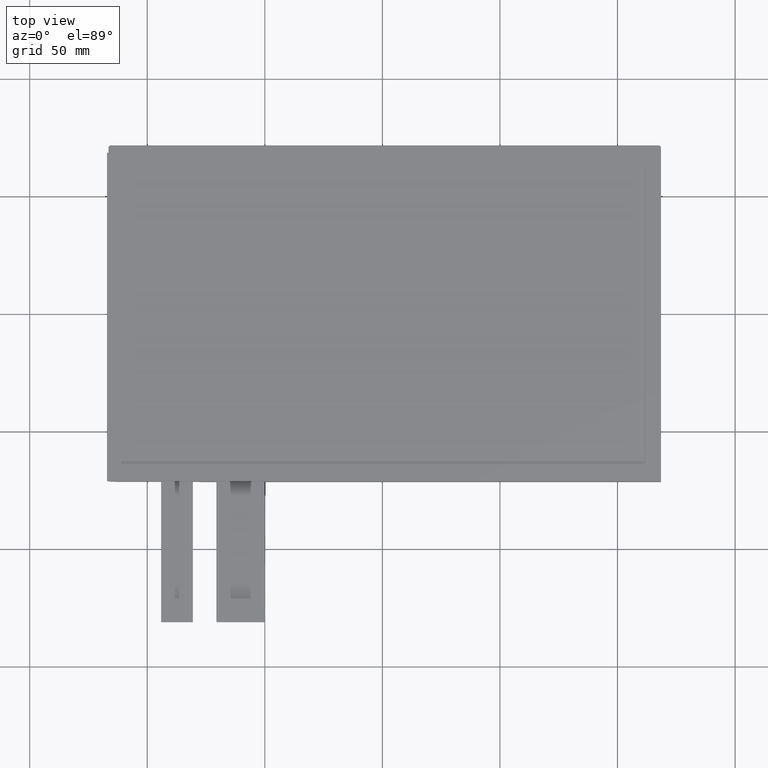
[diagram: clean part render]
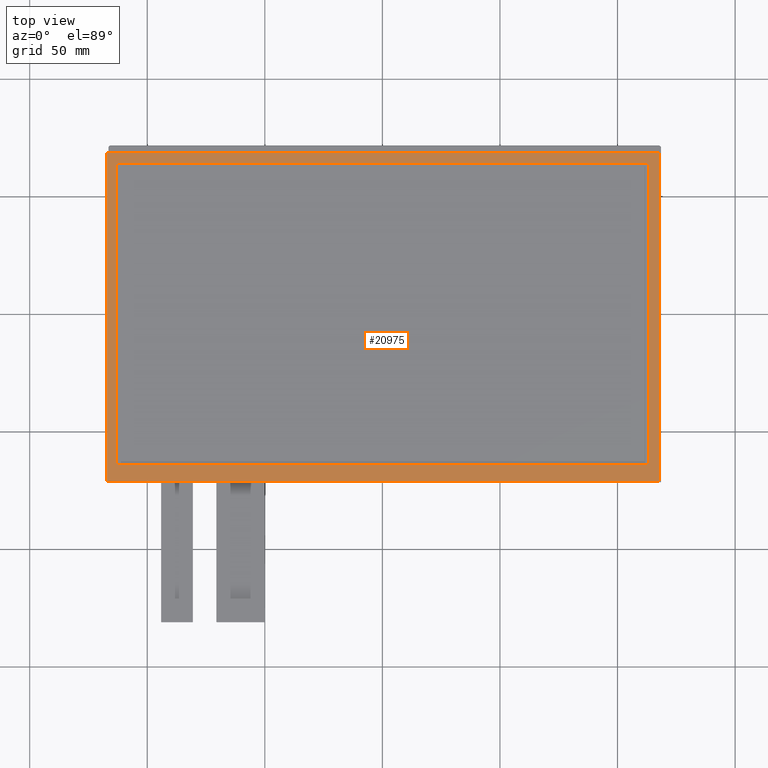
[diagram: same view with one face highlighted and labeled with its STEP entity id]
A machine part, top view. The second image highlights one B-rep face of the part: STEP entity #20975.
In plain terms, the highlighted planar face has unit normal (-0, 0, 1).
Its self-contained STEP definition (entity closure, byte-faithful):
#391=FACE_BOUND('',#1908,.T.);
#814=FACE_OUTER_BOUND('',#1907,.T.);
#1907=EDGE_LOOP('',(#15468,#15469,#15470,#15471));
#1908=EDGE_LOOP('',(#15472,#15473,#15474,#15475));
#3707=LINE('',#30554,#6541);
#3711=LINE('',#30562,#6545);
#3714=LINE('',#30568,#6548);
#3717=LINE('',#30573,#6551);
#3719=LINE('',#30579,#6553);
#3720=LINE('',#30581,#6554);
#3721=LINE('',#30583,#6555);
#3722=LINE('',#30584,#6556);
#6541=VECTOR('',#24739,10.);
#6545=VECTOR('',#24745,10.);
#6548=VECTOR('',#24750,10.);
#6551=VECTOR('',#24755,10.);
#6553=VECTOR('',#24761,10.);
#6554=VECTOR('',#24762,10.);
#6555=VECTOR('',#24763,10.);
#6556=VECTOR('',#24764,10.);
#9070=VERTEX_POINT('',#30552);
#9071=VERTEX_POINT('',#30553);
#9074=VERTEX_POINT('',#30561);
#9076=VERTEX_POINT('',#30567);
#9078=VERTEX_POINT('',#30577);
#9079=VERTEX_POINT('',#30578);
#9080=VERTEX_POINT('',#30580);
#9081=VERTEX_POINT('',#30582);
#11427=EDGE_CURVE('',#9070,#9071,#3707,.T.);
#11431=EDGE_CURVE('',#9074,#9070,#3711,.T.);
#11434=EDGE_CURVE('',#9076,#9074,#3714,.T.);
#11437=EDGE_CURVE('',#9071,#9076,#3717,.T.);
#11439=EDGE_CURVE('',#9078,#9079,#3719,.T.);
#11440=EDGE_CURVE('',#9079,#9080,#3720,.T.);
#11441=EDGE_CURVE('',#9080,#9081,#3721,.T.);
#11442=EDGE_CURVE('',#9081,#9078,#3722,.T.);
#15468=ORIENTED_EDGE('',*,*,#11439,.T.);
#15469=ORIENTED_EDGE('',*,*,#11440,.T.);
#15470=ORIENTED_EDGE('',*,*,#11441,.T.);
#15471=ORIENTED_EDGE('',*,*,#11442,.T.);
#15472=ORIENTED_EDGE('',*,*,#11427,.T.);
#15473=ORIENTED_EDGE('',*,*,#11437,.T.);
#15474=ORIENTED_EDGE('',*,*,#11434,.T.);
#15475=ORIENTED_EDGE('',*,*,#11431,.T.);
#20004=PLANE('',#22103);
#20975=ADVANCED_FACE('',(#814,#391),#20004,.T.);
#22103=AXIS2_PLACEMENT_3D('',#30576,#24759,#24760);
#24739=DIRECTION('',(3.59814214966532E-16,1.,1.24587818673845E-81));
#24745=DIRECTION('',(-1.,3.41520177063411E-16,-3.46255966250344E-66));
#24750=DIRECTION('',(-4.984837574646E-16,-1.,-1.72602975101007E-81));
#24755=DIRECTION('',(1.,-5.37724652564897E-16,3.46255966250344E-66));
#24759=DIRECTION('center_axis',(-3.46255966250344E-66,0.,1.));
#24760=DIRECTION('ref_axis',(1.,-4.984837574646E-16,3.46255966250344E-66));
#24761=DIRECTION('',(-1.,4.984837574646E-16,-3.46255966250344E-66));
#24762=DIRECTION('',(-4.984837574646E-16,-1.,-1.72602975101007E-81));
#24763=DIRECTION('',(1.,-3.4717567915112E-16,3.46255966250344E-66));
#24764=DIRECTION('',(4.984837574646E-16,1.,1.72602975101007E-81));
#30552=CARTESIAN_POINT('',(-113.17,-64.05,-3.91857877005514E-64));
#30553=CARTESIAN_POINT('',(-113.17,64.0500000000001,-3.91857877005514E-64));
#30554=CARTESIAN_POINT('',(-113.17,-32.6899999999999,-3.91857877005514E-64));
#30561=CARTESIAN_POINT('',(113.17,-64.0500000000001,3.91857877005514E-64));
#30562=CARTESIAN_POINT('',(56.72,-64.05,1.96396384057195E-64));
#30567=CARTESIAN_POINT('',(113.17,64.05,3.91857877005514E-64));
#30568=CARTESIAN_POINT('',(113.17,31.3599999999999,3.91857877005514E-64));
#30573=CARTESIAN_POINT('',(-56.45,64.05,-1.95461492948319E-64));
#30576=CARTESIAN_POINT('Origin',(0.270000000000009,-1.32999999999999,9.3489110887596E-67));
#30577=CARTESIAN_POINT('',(117.67,68.5199999999999,4.07439395486779E-64));
#30578=CARTESIAN_POINT('',(-117.13,68.5200000000001,-4.05569613269027E-64));
#30579=CARTESIAN_POINT('',(117.67,68.5199999999999,4.07439395486779E-64));
#30580=CARTESIAN_POINT('',(-117.13,-71.1799999999999,-4.05569613269028E-64));
#30581=CARTESIAN_POINT('',(-117.13,68.5200000000001,-4.05569613269027E-64));
#30582=CARTESIAN_POINT('',(117.67,-71.1800000000001,4.07439395486779E-64));
#30583=CARTESIAN_POINT('',(-117.13,-71.1799999999999,-4.05569613269028E-64));
#30584=CARTESIAN_POINT('',(117.67,-71.1800000000001,4.07439395486779E-64));